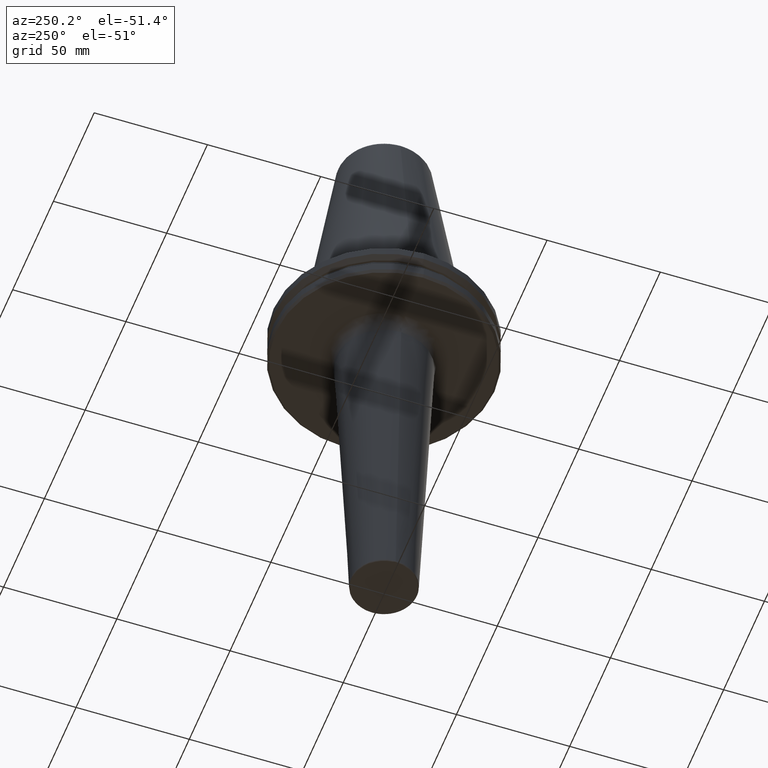
[diagram: clean part render]
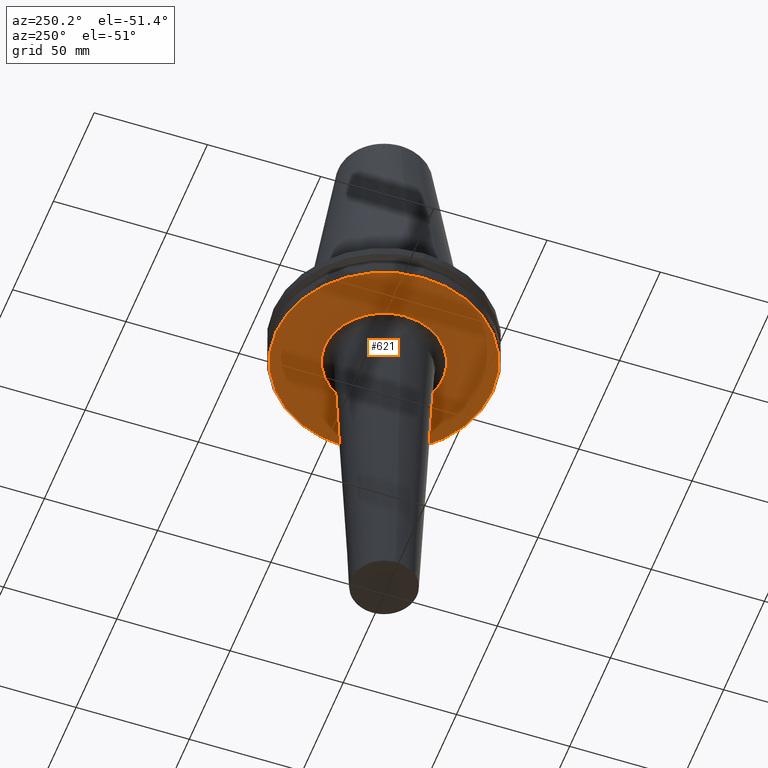
[diagram: same view with one face highlighted and labeled with its STEP entity id]
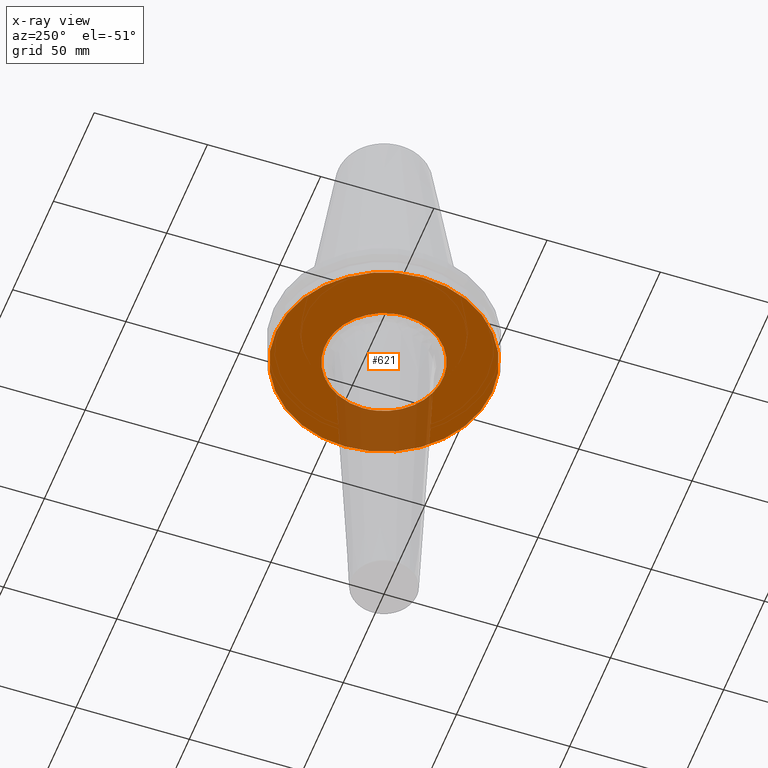
[diagram: x-ray of the same camera — body ghosted, the highlighted face saturated]
A machine part, auxiliary view. The second image highlights one B-rep face of the part: STEP entity #621.
The next image is the same camera in x-ray: the body ghosted, the highlighted face saturated — about 18% of this face is hidden behind the body in this view.
In plain terms, the highlighted planar face has unit normal (0, 0, -1).
Its self-contained STEP definition (entity closure, byte-faithful):
#28 = CARTESIAN_POINT ( 'NONE',  ( 1.591773308855094700, 26.03002750902816900, -19.10000000000000900 ) ) ;
#41 = CARTESIAN_POINT ( 'NONE',  ( -0.7958866544275430300, 26.03007615503745600, -19.10000000000001200 ) ) ;
#157 = VERTEX_POINT ( 'NONE', #241 ) ;
#159 = CARTESIAN_POINT ( 'NONE',  ( -26.03005993970102200, 0.0000000000000000000, -19.10000000000000500 ) ) ;
#174 = CARTESIAN_POINT ( 'NONE',  ( 13.50780819922311700, 22.26830765112801200, -19.10000000000000900 ) ) ;
#205 = CARTESIAN_POINT ( 'NONE',  ( 14.28990858526559500, 21.75696430597932400, -19.09999999999999800 ) ) ;
#232 = EDGE_LOOP ( 'NONE', ( #1393, #1376 ) ) ;
#241 = CARTESIAN_POINT ( 'NONE',  ( 47.74999999999995700, 0.0000000000000000000, -19.09999999999995200 ) ) ;
#257 = DIRECTION ( 'NONE',  ( -1.000000000000000000, 0.0000000000000000000, 0.0000000000000000000 ) ) ;
#263 = DIRECTION ( 'NONE',  ( -0.0000000000000000000, -0.0000000000000000000, -1.000000000000000000 ) ) ;
#271 = CARTESIAN_POINT ( 'NONE',  ( 0.0000000000000000000, 0.0000000000000000000, -19.09999999999995200 ) ) ;
#272 = CARTESIAN_POINT ( 'NONE',  ( 4.050720657154872000, -25.71433571196434200, -19.10000000000000500 ) ) ;
#276 = CARTESIAN_POINT ( 'NONE',  ( -47.74999999999995700, 5.908920805886001700E-015, -19.09999999999995200 ) ) ;
#315 = CARTESIAN_POINT ( 'NONE',  ( 26.03005993970102200, 3.187762958676860000E-015, -19.10000000000000500 ) ) ;
#317 = CARTESIAN_POINT ( 'NONE',  ( 26.03005993970102900, -1.592304120442103300, -19.10000000000000900 ) ) ;
#320 = EDGE_LOOP ( 'NONE', ( #1296, #647 ) ) ;
#322 = CARTESIAN_POINT ( 'NONE',  ( 25.88520585277175800, -3.171140507475178200, -19.10000000000000500 ) ) ;
#327 = CARTESIAN_POINT ( 'NONE',  ( 25.59097098869668200, -4.760968046311962400, -19.10000000000000500 ) ) ;
#338 = CARTESIAN_POINT ( 'NONE',  ( 25.58585564429415300, -4.788389321002451700, -19.10000000000000100 ) ) ;
#347 = CARTESIAN_POINT ( 'NONE',  ( 25.57609859561316800, -4.840236144990848600, -19.10000000000000500 ) ) ;
#355 = CARTESIAN_POINT ( 'NONE',  ( 25.56134800852979100, -4.917973045058469800, -19.10000000000000100 ) ) ;
#357 = CARTESIAN_POINT ( 'NONE',  ( 25.52612487356853400, -5.099125793811452900, -19.10000000000000100 ) ) ;
#360 = AXIS2_PLACEMENT_3D ( 'NONE', #271, #263, #257 ) ;
#364 = CARTESIAN_POINT ( 'NONE',  ( 25.45245820991262800, -5.460497885698266000, -19.10000000000000500 ) ) ;
#371 = CARTESIAN_POINT ( 'NONE',  ( 25.29224330766710300, -6.179508446995198400, -19.10000000000000100 ) ) ;
#372 = CARTESIAN_POINT ( 'NONE',  ( 24.92028720344123000, -7.602595079682323000, -19.10000000000000100 ) ) ;
#375 = CARTESIAN_POINT ( 'NONE',  ( 24.51313688598796900, -8.796781639288305100, -19.10000000000000500 ) ) ;
#379 = CARTESIAN_POINT ( 'NONE',  ( 24.18302697800657300, -9.630573960513265400, -19.09999999999999800 ) ) ;
#381 = CARTESIAN_POINT ( 'NONE',  ( 24.16180779767351100, -9.683701166111715600, -19.10000000000000100 ) ) ;
#387 = CARTESIAN_POINT ( 'NONE',  ( 24.12070927020587900, -9.785634931535309300, -19.10000000000000500 ) ) ;
#391 = CARTESIAN_POINT ( 'NONE',  ( 24.05860036175114300, -9.938295532364961100, -19.10000000000000500 ) ) ;
#394 = CARTESIAN_POINT ( 'NONE',  ( 23.91045175458374000, -10.29282326982728300, -19.10000000000000900 ) ) ;
#398 = CARTESIAN_POINT ( 'NONE',  ( 23.60124325715674900, -10.99515742019122100, -19.10000000000000500 ) ) ;
#401 = CARTESIAN_POINT ( 'NONE',  ( 22.93118112993417800, -12.37294042267620900, -19.10000000000000900 ) ) ;
#407 = CARTESIAN_POINT ( 'NONE',  ( 22.26830765111149500, -13.50780819924694500, -19.10000000000001200 ) ) ;
#408 = CARTESIAN_POINT ( 'NONE',  ( 21.75696430598036100, -14.28990858526409900, -19.10000000000000500 ) ) ;
#411 = CARTESIAN_POINT ( 'NONE',  ( 21.72543059198216400, -14.33781095273481100, -19.10000000000000500 ) ) ;
#417 = CARTESIAN_POINT ( 'NONE',  ( 21.66339761940653500, -14.43137649921018100, -19.10000000000000500 ) ) ;
#419 = CARTESIAN_POINT ( 'NONE',  ( 21.56992792226745000, -14.57138209286805800, -19.10000000000000900 ) ) ;
#422 = CARTESIAN_POINT ( 'NONE',  ( -19.67642447712934500, -17.13558675727097100, -19.10000000000000900 ) ) ;
#428 = CARTESIAN_POINT ( 'NONE',  ( -21.81776551661294400, -14.19690884579600800, -19.10000000000000900 ) ) ;
#432 = CARTESIAN_POINT ( 'NONE',  ( 21.34889029434690100, -14.89566272901688600, -19.10000000000001200 ) ) ;
#433 = CARTESIAN_POINT ( 'NONE',  ( -25.45245820991720400, 5.460497885673593300, -19.10000000000000500 ) ) ;
#435 = CARTESIAN_POINT ( 'NONE',  ( 20.89504836678839400, -15.53462767176966600, -19.10000000000000500 ) ) ;
#437 = CARTESIAN_POINT ( 'NONE',  ( -20.80393323569842300, -15.74770538126881500, -19.10000000000001200 ) ) ;
#439 = CARTESIAN_POINT ( 'NONE',  ( 19.94029782480183100, -16.77417223909576500, -19.10000000000000500 ) ) ;
#442 = CARTESIAN_POINT ( 'NONE',  ( 19.04125446846547100, -17.77083560849614900, -19.10000000000000100 ) ) ;
#446 = CARTESIAN_POINT ( 'NONE',  ( 17.13558675723370300, -19.67642447717238200, -19.10000000000000500 ) ) ;
#448 = CARTESIAN_POINT ( 'NONE',  ( 15.74770538130955800, -20.80393323566347500, -19.10000000000000500 ) ) ;
#450 = EDGE_CURVE ( 'NONE', #917, #157, #1521, .T. ) ;
#453 = CARTESIAN_POINT ( 'NONE',  ( 14.19690884579472200, -21.81776551661403100, -19.10000000000000100 ) ) ;
#455 = CARTESIAN_POINT ( 'NONE',  ( 14.15177242031490600, -21.84706749499573400, -19.10000000000000500 ) ) ;
#461 = CARTESIAN_POINT ( 'NONE',  ( 14.05940394331033600, -21.90662960198640300, -19.10000000000000500 ) ) ;
#467 = CARTESIAN_POINT ( 'NONE',  ( 13.92061301068826900, -21.99551070074955200, -19.10000000000000900 ) ) ;
#469 = CARTESIAN_POINT ( 'NONE',  ( 13.59509998143030000, -22.19966549913685600, -19.10000000000000500 ) ) ;
#475 = CARTESIAN_POINT ( 'NONE',  ( 12.93740384368846100, -22.59503736767138100, -19.10000000000000900 ) ) ;
#478 = CARTESIAN_POINT ( 'NONE',  ( 11.59533125130115400, -23.33403019177998400, -19.10000000000000500 ) ) ;
#494 = CARTESIAN_POINT ( 'NONE',  ( 10.39924562884869500, -23.87873676165518700, -19.10000000000000500 ) ) ;
#499 = CARTESIAN_POINT ( 'NONE',  ( 9.530419961165739200, -24.22267698577738700, -19.10000000000000100 ) ) ;
#501 = CARTESIAN_POINT ( 'NONE',  ( 9.483348310640556300, -24.24114026569149900, -19.10000000000000100 ) ) ;
#506 = CARTESIAN_POINT ( 'NONE',  ( 9.385037894743293300, -24.27937469819399800, -19.10000000000000500 ) ) ;
#515 = CARTESIAN_POINT ( 'NONE',  ( 9.237440897741962000, -24.33626572164661900, -19.10000000000000500 ) ) ;
#516 = CARTESIAN_POINT ( 'NONE',  ( 8.892128292650845400, -24.46578706592808000, -19.10000000000000900 ) ) ;
#520 = CARTESIAN_POINT ( 'NONE',  ( 8.197824634116507500, -24.71193224605905000, -19.10000000000000500 ) ) ;
#522 = CARTESIAN_POINT ( 'NONE',  ( 6.794503523639468400, -25.15263257259326900, -19.10000000000000500 ) ) ;
#527 = CARTESIAN_POINT ( 'NONE',  ( 5.566433211673356100, -25.44193565180363200, -19.10000000000000500 ) ) ;
#530 = CARTESIAN_POINT ( 'NONE',  ( 4.710574034518638000, -25.60029649226039400, -19.10000000000000500 ) ) ;
#534 = B_SPLINE_CURVE_WITH_KNOTS ( 'NONE', 3,
 ( #946, #976, #864, #1039, #1123, #1131, #851, #849, #837, #831, #826, #825, #807, #805, #804, #800, #792, #786, #781, #771, #764, #752, #745, #744, #736, #428, #437, #422, #721, #703, #696, #693, #690, #679, #678, #671, #666, #662, #657, #651, #637, #632, #626, #623, #620, #600, #595, #588, #583, #578, #576, #573, #571, #564, #563, #561, #559, #553, #272, #619, #684, #544, #536, #530, #527, #522, #520, #516, #515, #506, #501, #499, #494, #478, #475, #469, #467, #461, #455, #453, #448, #446, #442, #439, #435, #432, #419, #417, #411, #408, #407, #401, #398, #394, #391, #387, #381, #379, #375, #372, #371, #364, #357, #355, #347, #338, #327, #322, #317, #315 ),
 .UNSPECIFIED., .F., .F.,
 ( 4, 1, 1, 1, 1, 1, 2, 2, 1, 1, 1, 1, 2, 2, 1, 1, 1, 1, 2, 2, 2, 1, 1, 1, 1, 2, 2, 1, 1, 1, 1, 2, 2, 1, 1, 1, 1, 1, 2, 2, 2, 1, 1, 1, 1, 1, 2, 2, 1, 1, 1, 1, 2, 2, 1, 1, 1, 1, 2, 2, 2, 1, 1, 1, 1, 2, 2, 1, 1, 1, 1, 2, 2, 1, 1, 1, 1, 1, 2, 2, 4 ),
 ( 0.0000000000000000000, 0.03125000000000097100, 0.04687500000000147100, 0.05468750000000171400, 0.05859375000000181800, 0.06054687500000190100, 0.06152343750000195700, 0.06250000000000201200, 0.09375000000000265100, 0.1093750000000029600, 0.1171875000000031400, 0.1210937500000032100, 0.1230468750000032200, 0.1250000000000032200, 0.1562500000000030000, 0.1718750000000028900, 0.1796875000000028900, 0.1835937500000029400, 0.1855468750000029400, 0.1875000000000029400, 0.2500000000000045500, 0.2812500000000053800, 0.2968750000000057700, 0.3046875000000060000, 0.3085937500000060500, 0.3105468750000060500, 0.3125000000000060500, 0.3437500000000067700, 0.3593750000000071100, 0.3671875000000073300, 0.3710937500000073800, 0.3730468750000073800, 0.3750000000000073800, 0.4062500000000071600, 0.4218750000000071100, 0.4296875000000071100, 0.4335937500000070500, 0.4355468750000069900, 0.4365234375000069400, 0.4375000000000069400, 0.5000000000000055500, 0.5312500000000050000, 0.5468750000000046600, 0.5546875000000044400, 0.5585937500000043300, 0.5605468750000043300, 0.5615234375000042200, 0.5625000000000041100, 0.5937500000000028900, 0.6093750000000023300, 0.6171875000000020000, 0.6210937500000018900, 0.6230468750000017800, 0.6250000000000017800, 0.6562500000000012200, 0.6718750000000010000, 0.6796875000000008900, 0.6835937500000008900, 0.6855468750000010000, 0.6875000000000010000, 0.7499999999999993300, 0.7812499999999985600, 0.7968749999999982200, 0.8046874999999981100, 0.8085937499999980000, 0.8105468749999980000, 0.8124999999999978900, 0.8437499999999984500, 0.8593749999999987800, 0.8671874999999988900, 0.8710937499999990000, 0.8730468749999990000, 0.8749999999999991100, 0.9062500000000000000, 0.9218750000000004400, 0.9296875000000006700, 0.9335937500000007800, 0.9355468750000008900, 0.9365234375000008900, 0.9375000000000008900, 1.000000000000000000 ),
 .UNSPECIFIED. ) ;
#536 = CARTESIAN_POINT ( 'NONE',  ( 4.687571644382878800, -25.60451670011987300, -19.10000000000000900 ) ) ;
#544 = CARTESIAN_POINT ( 'NONE',  ( 4.638624652382139500, -25.61342960327163400, -19.10000000000000500 ) ) ;
#553 = CARTESIAN_POINT ( 'NONE',  ( 3.363517177387018700, -25.81732678215271900, -19.10000000000000500 ) ) ;
#559 = CARTESIAN_POINT ( 'NONE',  ( 1.984865290380411400, -25.97576803394128900, -19.10000000000000500 ) ) ;
#561 = CARTESIAN_POINT ( 'NONE',  ( 0.7958866544245858400, -26.03007615503744200, -19.10000000000000100 ) ) ;
#563 = CARTESIAN_POINT ( 'NONE',  ( -1.591773308849160600, -26.03002750902817300, -19.10000000000000500 ) ) ;
#564 = CARTESIAN_POINT ( 'NONE',  ( -3.171315816543454500, -25.88517340771245400, -19.10000000000000500 ) ) ;
#567 = DIRECTION ( 'NONE',  ( -1.000000000000000000, 0.0000000000000000000, -0.0000000000000000000 ) ) ;
#570 = DIRECTION ( 'NONE',  ( 0.0000000000000000000, 0.0000000000000000000, -1.000000000000000000 ) ) ;
#571 = CARTESIAN_POINT ( 'NONE',  ( -4.760965307107767300, -25.59097149565073400, -19.10000000000000100 ) ) ;
#573 = CARTESIAN_POINT ( 'NONE',  ( -4.788389321000647800, -25.58585564429466800, -19.10000000000000900 ) ) ;
#576 = CARTESIAN_POINT ( 'NONE',  ( -4.840236144987281700, -25.57609859561419100, -19.10000000000000500 ) ) ;
#578 = CARTESIAN_POINT ( 'NONE',  ( -4.917973045052304900, -25.56134800853155700, -19.10000000000000500 ) ) ;
#583 = CARTESIAN_POINT ( 'NONE',  ( -5.099125793799525600, -25.52612487357196300, -19.10000000000000900 ) ) ;
#588 = CARTESIAN_POINT ( 'NONE',  ( -5.460497885675997600, -25.45245820991901900, -19.10000000000000500 ) ) ;
#595 = CARTESIAN_POINT ( 'NONE',  ( -6.179508446957023600, -25.29224330767805600, -19.10000000000000100 ) ) ;
#600 = CARTESIAN_POINT ( 'NONE',  ( -7.602595079631417900, -24.92028720345583900, -19.10000000000000100 ) ) ;
#602 = EDGE_CURVE ( 'NONE', #1409, #1193, #921, .T. ) ;
#605 = CARTESIAN_POINT ( 'NONE',  ( 0.0000000000000000000, 1.392610934382537900E-015, -19.10000000000000500 ) ) ;
#619 = CARTESIAN_POINT ( 'NONE',  ( 4.393791781104935600, -25.65689756579663700, -19.10000000000000900 ) ) ;
#620 = CARTESIAN_POINT ( 'NONE',  ( -8.796781639259215500, -24.51313688599631700, -19.10000000000000100 ) ) ;
#621 = ADVANCED_FACE ( 'NONE', ( #1301, #1311 ), #624, .T. ) ;
#623 = CARTESIAN_POINT ( 'NONE',  ( -9.630573960515088000, -24.18302697800606500, -19.10000000000000100 ) ) ;
#624 = PLANE ( 'NONE',  #1407 ) ;
#626 = CARTESIAN_POINT ( 'NONE',  ( -9.683701166112275200, -24.16180779767368500, -19.10000000000000500 ) ) ;
#632 = CARTESIAN_POINT ( 'NONE',  ( -9.785634931536394600, -24.12070927020624100, -19.10000000000000500 ) ) ;
#637 = CARTESIAN_POINT ( 'NONE',  ( -9.938295532366806700, -24.05860036175177500, -19.10000000000000900 ) ) ;
#647 = ORIENTED_EDGE ( 'NONE', *, *, #602, .T. ) ;
#651 = CARTESIAN_POINT ( 'NONE',  ( -10.29282326983074800, -23.91045175458489400, -19.10000000000000900 ) ) ;
#657 = CARTESIAN_POINT ( 'NONE',  ( -10.99515742019713600, -23.60124325715873900, -19.10000000000000100 ) ) ;
#662 = CARTESIAN_POINT ( 'NONE',  ( -12.37294042268409200, -22.93118112993683200, -19.10000000000000500 ) ) ;
#666 = CARTESIAN_POINT ( 'NONE',  ( -13.50780819925145200, -22.26830765111301600, -19.10000000000000900 ) ) ;
#671 = CARTESIAN_POINT ( 'NONE',  ( -14.28990858526382500, -21.75696430598026200, -19.10000000000000100 ) ) ;
#678 = CARTESIAN_POINT ( 'NONE',  ( -14.33781095273747000, -21.72543059197987200, -19.10000000000000100 ) ) ;
#679 = CARTESIAN_POINT ( 'NONE',  ( -14.43137649921535500, -21.66339761940204800, -19.10000000000000500 ) ) ;
#684 = CARTESIAN_POINT ( 'NONE',  ( 4.565194689096494500, -25.62669283994439000, -19.10000000000000500 ) ) ;
#690 = CARTESIAN_POINT ( 'NONE',  ( -14.57138209287689400, -21.56992792225980400, -19.10000000000000500 ) ) ;
#693 = CARTESIAN_POINT ( 'NONE',  ( -14.89566272903337400, -21.34889029433263400, -19.10000000000000900 ) ) ;
#696 = CARTESIAN_POINT ( 'NONE',  ( -15.53462767179791200, -20.89504836676394800, -19.10000000000000100 ) ) ;
#701 = CARTESIAN_POINT ( 'NONE',  ( 12.37294042263451600, 22.93118112996306800, -19.10000000000000500 ) ) ;
#703 = CARTESIAN_POINT ( 'NONE',  ( -16.77417223913341700, -19.94029782476922500, -19.10000000000000100 ) ) ;
#719 = CARTESIAN_POINT ( 'NONE',  ( -26.03005993970102200, 0.0000000000000000000, -19.10000000000000500 ) ) ;
#720 = CARTESIAN_POINT ( 'NONE',  ( -26.03005993970102200, 1.592304120442116900, -19.09999999999999800 ) ) ;
#721 = CARTESIAN_POINT ( 'NONE',  ( -17.77083560851766500, -19.04125446844684800, -19.10000000000000900 ) ) ;
#722 = CARTESIAN_POINT ( 'NONE',  ( -25.88520585277175500, 3.171140507475128000, -19.10000000000000100 ) ) ;
#726 = CARTESIAN_POINT ( 'NONE',  ( -25.59097098869668600, 4.760968046311966800, -19.10000000000000500 ) ) ;
#732 = CARTESIAN_POINT ( 'NONE',  ( -25.58585564429452900, 4.788389321000458700, -19.10000000000001200 ) ) ;
#736 = CARTESIAN_POINT ( 'NONE',  ( -21.84706749499651200, -14.15177242031293600, -19.10000000000000500 ) ) ;
#740 = CARTESIAN_POINT ( 'NONE',  ( -25.57609859561390000, 4.840236144986901600, -19.10000000000000100 ) ) ;
#744 = CARTESIAN_POINT ( 'NONE',  ( -21.90662960198793700, -14.05940394330649200, -19.10000000000000500 ) ) ;
#745 = CARTESIAN_POINT ( 'NONE',  ( -21.99551070075217400, -13.92061301068170400, -19.10000000000000500 ) ) ;
#747 = CARTESIAN_POINT ( 'NONE',  ( -25.56134800853105600, 4.917973045051647700, -19.10000000000000100 ) ) ;
#751 = CARTESIAN_POINT ( 'NONE',  ( -24.92028720345167200, 7.602595079625909400, -19.10000000000000500 ) ) ;
#752 = CARTESIAN_POINT ( 'NONE',  ( -22.19966549914175100, -13.59509998141803600, -19.10000000000000100 ) ) ;
#755 = CARTESIAN_POINT ( 'NONE',  ( -24.51313688599393700, 8.796781639256067800, -19.10000000000000500 ) ) ;
#764 = CARTESIAN_POINT ( 'NONE',  ( -22.59503736767978300, -12.93740384366743400, -19.10000000000000500 ) ) ;
#766 = CARTESIAN_POINT ( 'NONE',  ( -24.18302697800620700, 9.630573960515297600, -19.10000000000000500 ) ) ;
#769 = CARTESIAN_POINT ( 'NONE',  ( -24.16180779767552900, 9.683701166108800600, -19.10000000000000500 ) ) ;
#771 = CARTESIAN_POINT ( 'NONE',  ( -23.33403019179120000, -11.59533125127312300, -19.10000000000000900 ) ) ;
#774 = CARTESIAN_POINT ( 'NONE',  ( -24.12070927020983600, 9.785634931529594700, -19.10000000000000100 ) ) ;
#778 = CARTESIAN_POINT ( 'NONE',  ( -24.05860036175792200, 9.938295532355196500, -19.10000000000000500 ) ) ;
#781 = CARTESIAN_POINT ( 'NONE',  ( -23.87873676166158900, -10.39924562883266800, -19.09999999999999800 ) ) ;
#784 = CARTESIAN_POINT ( 'NONE',  ( -23.91045175459636600, 10.29282326980905900, -19.10000000000000500 ) ) ;
#786 = CARTESIAN_POINT ( 'NONE',  ( -24.22267698577700300, -9.530419961166742800, -19.10000000000000500 ) ) ;
#787 = CARTESIAN_POINT ( 'NONE',  ( -23.60124325717842500, 10.99515742015994700, -19.10000000000000500 ) ) ;
#789 = CARTESIAN_POINT ( 'NONE',  ( -22.93118112996308300, 12.37294042263448500, -19.10000000000000500 ) ) ;
#792 = CARTESIAN_POINT ( 'NONE',  ( -24.24114026569177900, -9.483348310639801300, -19.10000000000000100 ) ) ;
#793 = CARTESIAN_POINT ( 'NONE',  ( -22.26830765112802300, 13.50780819922309700, -19.10000000000000900 ) ) ;
#796 = CARTESIAN_POINT ( 'NONE',  ( -21.75696430597933100, 14.28990858526559800, -19.10000000000000500 ) ) ;
#800 = CARTESIAN_POINT ( 'NONE',  ( -24.27937469819456600, -9.385037894741822500, -19.10000000000000100 ) ) ;
#802 = CARTESIAN_POINT ( 'NONE',  ( -21.72543059198183000, 14.33781095273515600, -19.10000000000000500 ) ) ;
#804 = CARTESIAN_POINT ( 'NONE',  ( -24.33626572164758500, -9.237440897739453800, -19.10000000000000100 ) ) ;
#805 = CARTESIAN_POINT ( 'NONE',  ( -24.46578706592988400, -8.892128292646157600, -19.10000000000000500 ) ) ;
#806 = CARTESIAN_POINT ( 'NONE',  ( -21.66339761940585600, 14.43137649921084700, -19.10000000000000100 ) ) ;
#807 = CARTESIAN_POINT ( 'NONE',  ( -24.71193224606215500, -8.197824634108474800, -19.10000000000000500 ) ) ;
#808 = CARTESIAN_POINT ( 'NONE',  ( -21.56992792226631300, 14.57138209286919100, -19.10000000000000100 ) ) ;
#811 = CARTESIAN_POINT ( 'NONE',  ( -21.34889029434478400, 14.89566272901900300, -19.10000000000000500 ) ) ;
#815 = CARTESIAN_POINT ( 'NONE',  ( -20.89504836678477400, 15.53462767177329300, -19.10000000000000500 ) ) ;
#817 = CARTESIAN_POINT ( 'NONE',  ( -19.94029782479699600, 16.77417223910058700, -19.10000000000000500 ) ) ;
#822 = CARTESIAN_POINT ( 'NONE',  ( -19.04125446846271400, 17.77083560849891700, -19.10000000000000900 ) ) ;
#824 = CARTESIAN_POINT ( 'NONE',  ( -17.13558675723922800, 19.67642447716686100, -19.10000000000000900 ) ) ;
#825 = CARTESIAN_POINT ( 'NONE',  ( -25.15263257259741200, -6.794503523628755200, -19.10000000000000500 ) ) ;
#826 = CARTESIAN_POINT ( 'NONE',  ( -25.44193565180600600, -5.566433211667233000, -19.10000000000000500 ) ) ;
#828 = CARTESIAN_POINT ( 'NONE',  ( -15.74770538130955400, 20.80393323566348200, -19.10000000000001200 ) ) ;
#831 = CARTESIAN_POINT ( 'NONE',  ( -25.60029649226032300, -4.710574034518827200, -19.09999999999999800 ) ) ;
#832 = CARTESIAN_POINT ( 'NONE',  ( -14.19690884579472200, 21.81776551661402100, -19.10000000000000100 ) ) ;
#835 = CARTESIAN_POINT ( 'NONE',  ( -14.15177242031957600, 21.84706749499267900, -19.10000000000000100 ) ) ;
#837 = CARTESIAN_POINT ( 'NONE',  ( -25.60451569457898200, -4.687577078815579900, -19.10000000000000100 ) ) ;
#844 = CARTESIAN_POINT ( 'NONE',  ( -14.05940394331945200, 21.90662960198044800, -19.10000000000000500 ) ) ;
#849 = CARTESIAN_POINT ( 'NONE',  ( -25.61342761594279300, -4.638635392875118100, -19.10000000000000500 ) ) ;
#851 = CARTESIAN_POINT ( 'NONE',  ( -25.62668940368656200, -4.565213260307465300, -19.10000000000000500 ) ) ;
#853 = CARTESIAN_POINT ( 'NONE',  ( -13.92061301070384400, 21.99551070073936600, -19.10000000000000100 ) ) ;
#856 = CARTESIAN_POINT ( 'NONE',  ( -13.59509998145937500, 22.19966549911785900, -19.10000000000000900 ) ) ;
#860 = CARTESIAN_POINT ( 'NONE',  ( -12.93740384373830200, 22.59503736763879200, -19.10000000000000500 ) ) ;
#864 = CARTESIAN_POINT ( 'NONE',  ( -25.97573965710254700, -1.985018652638710400, -19.10000000000000900 ) ) ;
#866 = AXIS2_PLACEMENT_3D ( 'NONE', #1405, #1401, #1396 ) ;
#869 = CARTESIAN_POINT ( 'NONE',  ( -11.59533125136761500, 23.33403019173654200, -19.10000000000000900 ) ) ;
#876 = CARTESIAN_POINT ( 'NONE',  ( -10.39924562888667100, 23.87873676163036400, -19.10000000000000900 ) ) ;
#880 = CARTESIAN_POINT ( 'NONE',  ( -9.530419961163371300, 24.22267698577892500, -19.10000000000000100 ) ) ;
#882 = CARTESIAN_POINT ( 'NONE',  ( -9.483348310646381000, 24.24114026569033300, -19.10000000000000100 ) ) ;
#886 = CARTESIAN_POINT ( 'NONE',  ( -9.385037894754665500, 24.27937469819175200, -19.10000000000000900 ) ) ;
#888 = CARTESIAN_POINT ( 'NONE',  ( -9.237440897761372200, 24.33626572164278200, -19.10000000000000100 ) ) ;
#891 = CARTESIAN_POINT ( 'NONE',  ( -8.892128292687070600, 24.46578706592092100, -19.10000000000000900 ) ) ;
#896 = CARTESIAN_POINT ( 'NONE',  ( -8.197824634178610700, 24.71193224604678900, -19.10000000000000500 ) ) ;
#904 = CARTESIAN_POINT ( 'NONE',  ( -6.794503523722259100, 25.15263257257694100, -19.10000000000000500 ) ) ;
#907 = EDGE_CURVE ( 'NONE', #157, #917, #1140, .T. ) ;
#909 = CARTESIAN_POINT ( 'NONE',  ( -5.566433211720661400, 25.44193565179431000, -19.10000000000000500 ) ) ;
#914 = CARTESIAN_POINT ( 'NONE',  ( -4.710574034517160100, 25.60029649226069600, -19.10000000000000500 ) ) ;
#917 = VERTEX_POINT ( 'NONE', #276 ) ;
#918 = CARTESIAN_POINT ( 'NONE',  ( -4.687571644383064400, 25.60451670011988100, -19.10000000000001200 ) ) ;
#921 = B_SPLINE_CURVE_WITH_KNOTS ( 'NONE', 3,
 ( #1143, #1138, #1141, #1132, #1125, #1122, #1113, #1106, #1105, #1103, #1098, #1094, #1089, #1087, #1085, #1084, #1081, #1075, #1070, #1067, #1066, #1062, #1060, #1055, #1053, #1052, #1050, #1047, #1040, #1034, #1033, #1029, #1027, #1016, #1013, #205, #174, #701, #1003, #997, #989, #985, #980, #978, #972, #968, #967, #962, #959, #951, #949, #947, #943, #1078, #28, #41, #940, #934, #930, #928, #925, #924, #918, #914, #909, #904, #896, #891, #888, #886, #882, #880, #876, #869, #860, #856, #853, #844, #835, #832, #828, #824, #822, #817, #815, #811, #808, #806, #802, #796, #793, #789, #787, #784, #778, #774, #769, #766, #755, #751, #1198, #433, #1307, #747, #740, #732, #726, #722, #720, #719 ),
 .UNSPECIFIED., .F., .F.,
 ( 4, 1, 1, 1, 1, 1, 2, 2, 1, 1, 1, 1, 2, 2, 1, 1, 1, 1, 2, 2, 2, 1, 1, 1, 1, 2, 2, 1, 1, 1, 1, 2, 2, 1, 1, 1, 1, 1, 2, 2, 2, 1, 1, 1, 1, 1, 2, 2, 1, 1, 1, 1, 2, 2, 1, 1, 1, 1, 2, 2, 2, 1, 1, 1, 1, 2, 2, 1, 1, 1, 1, 2, 2, 1, 1, 1, 1, 1, 2, 2, 4 ),
 ( 0.0000000000000000000, 0.03124999999999910500, 0.04687499999999865400, 0.05468749999999842500, 0.05859374999999829300, 0.06054687499999823100, 0.06152343749999818900, 0.06249999999999814700, 0.09374999999999693300, 0.1093749999999962800, 0.1171874999999959900, 0.1210937499999958400, 0.1230468749999957800, 0.1249999999999957300, 0.1562499999999948700, 0.1718749999999943900, 0.1796874999999941200, 0.1835937499999939200, 0.1855468749999938100, 0.1874999999999937000, 0.2499999999999915300, 0.2812499999999904000, 0.2968749999999899000, 0.3046874999999896700, 0.3085937499999896200, 0.3105468749999895600, 0.3124999999999895100, 0.3437499999999883400, 0.3593749999999877900, 0.3671874999999875700, 0.3710937499999874500, 0.3730468749999874500, 0.3749999999999874500, 0.4062499999999874000, 0.4218749999999873400, 0.4296874999999873400, 0.4335937499999873400, 0.4355468749999873400, 0.4365234374999874000, 0.4374999999999874000, 0.4999999999999884500, 0.5312499999999890100, 0.5468749999999892300, 0.5546874999999893400, 0.5585937499999894500, 0.5605468749999894500, 0.5615234374999895600, 0.5624999999999896700, 0.5937499999999905600, 0.6093749999999910100, 0.6171874999999912300, 0.6210937499999913400, 0.6230468749999913400, 0.6249999999999914500, 0.6562499999999930100, 0.6718749999999937800, 0.6796874999999941200, 0.6835937499999942300, 0.6855468749999942300, 0.6874999999999943400, 0.7499999999999957800, 0.7812499999999965600, 0.7968749999999970000, 0.8046874999999972200, 0.8085937499999973400, 0.8105468749999974500, 0.8124999999999974500, 0.8437499999999981100, 0.8593749999999984500, 0.8671874999999986700, 0.8710937499999987800, 0.8730468749999988900, 0.8749999999999988900, 0.9062499999999993300, 0.9218749999999995600, 0.9296874999999996700, 0.9335937499999997800, 0.9355468749999998900, 0.9365234374999997800, 0.9374999999999997800, 1.000000000000000000 ),
 .UNSPECIFIED. ) ;
#924 = CARTESIAN_POINT ( 'NONE',  ( -4.638624652382502800, 25.61342960327164100, -19.10000000000000900 ) ) ;
#925 = CARTESIAN_POINT ( 'NONE',  ( -4.565194689097129600, 25.62669283994439000, -19.10000000000000900 ) ) ;
#928 = CARTESIAN_POINT ( 'NONE',  ( -4.393791781106148900, 25.65689756579663300, -19.10000000000000500 ) ) ;
#930 = CARTESIAN_POINT ( 'NONE',  ( -4.050720657157140400, 25.71433571196434500, -19.10000000000000900 ) ) ;
#934 = CARTESIAN_POINT ( 'NONE',  ( -3.363517177390904500, 25.81732678215273300, -19.10000000000000500 ) ) ;
#940 = CARTESIAN_POINT ( 'NONE',  ( -1.984865290385571200, 25.97576803394129600, -19.10000000000000900 ) ) ;
#943 = CARTESIAN_POINT ( 'NONE',  ( 4.760965307107304600, 25.59097149565073800, -19.10000000000000500 ) ) ;
#946 = CARTESIAN_POINT ( 'NONE',  ( -26.03005993970102200, 0.0000000000000000000, -19.10000000000000500 ) ) ;
#947 = CARTESIAN_POINT ( 'NONE',  ( 4.788389321000463100, 25.58585564429452600, -19.10000000000000500 ) ) ;
#949 = CARTESIAN_POINT ( 'NONE',  ( 4.840236144986906900, 25.57609859561390000, -19.10000000000000100 ) ) ;
#951 = CARTESIAN_POINT ( 'NONE',  ( 4.917973045051645900, 25.56134800853106300, -19.10000000000000900 ) ) ;
#959 = CARTESIAN_POINT ( 'NONE',  ( 5.099125793798246600, 25.52612487357098900, -19.10000000000000500 ) ) ;
#962 = CARTESIAN_POINT ( 'NONE',  ( 5.460497885673595100, 25.45245820991720000, -19.10000000000000500 ) ) ;
#967 = CARTESIAN_POINT ( 'NONE',  ( 6.179508446952903400, 25.29224330767493400, -19.10000000000000500 ) ) ;
#968 = CARTESIAN_POINT ( 'NONE',  ( 7.602595079625929800, 24.92028720345167200, -19.10000000000000500 ) ) ;
#972 = CARTESIAN_POINT ( 'NONE',  ( 8.796781639256071400, 24.51313688599393000, -19.10000000000000900 ) ) ;
#976 = CARTESIAN_POINT ( 'NONE',  ( -26.03005993970103700, -0.7959742900007568100, -19.10000000000000900 ) ) ;
#978 = CARTESIAN_POINT ( 'NONE',  ( 9.630573960515295800, 24.18302697800620400, -19.10000000000000100 ) ) ;
#980 = CARTESIAN_POINT ( 'NONE',  ( 9.683701166108804200, 24.16180779767553200, -19.10000000000000500 ) ) ;
#985 = CARTESIAN_POINT ( 'NONE',  ( 9.785634931529600100, 24.12070927020984000, -19.10000000000000500 ) ) ;
#989 = CARTESIAN_POINT ( 'NONE',  ( 9.938295532355201800, 24.05860036175791400, -19.10000000000000500 ) ) ;
#997 = CARTESIAN_POINT ( 'NONE',  ( 10.29282326980905700, 23.91045175459637300, -19.10000000000000500 ) ) ;
#1003 = CARTESIAN_POINT ( 'NONE',  ( 10.99515742015995900, 23.60124325717842500, -19.10000000000000500 ) ) ;
#1013 = CARTESIAN_POINT ( 'NONE',  ( 14.33781095273412900, 21.72543059198250100, -19.10000000000000500 ) ) ;
#1016 = CARTESIAN_POINT ( 'NONE',  ( 14.43137649920883300, 21.66339761940717400, -19.10000000000000100 ) ) ;
#1027 = CARTESIAN_POINT ( 'NONE',  ( 14.57138209286576500, 21.56992792226856900, -19.10000000000000500 ) ) ;
#1029 = CARTESIAN_POINT ( 'NONE',  ( 14.89566272901259900, 21.34889029434897300, -19.10000000000000500 ) ) ;
#1033 = CARTESIAN_POINT ( 'NONE',  ( 15.53462767176232100, 20.89504836679195800, -19.10000000000000500 ) ) ;
#1034 = CARTESIAN_POINT ( 'NONE',  ( 16.77417223908596400, 19.94029782480657100, -19.10000000000000900 ) ) ;
#1039 = CARTESIAN_POINT ( 'NONE',  ( -25.81730549952366600, -3.363632199080754500, -19.10000000000000900 ) ) ;
#1040 = CARTESIAN_POINT ( 'NONE',  ( 17.77083560849054700, 19.04125446846818200, -19.10000000000000500 ) ) ;
#1047 = CARTESIAN_POINT ( 'NONE',  ( 19.67642447718358800, 17.13558675722830000, -19.10000000000000900 ) ) ;
#1050 = CARTESIAN_POINT ( 'NONE',  ( 20.80393323565254000, 15.74770538132628100, -19.10000000000000100 ) ) ;
#1052 = CARTESIAN_POINT ( 'NONE',  ( 21.81776551661437900, 14.19690884579420700, -19.10000000000000900 ) ) ;
#1053 = CARTESIAN_POINT ( 'NONE',  ( 21.84706749499581600, 14.15177242031479600, -19.10000000000001200 ) ) ;
#1055 = CARTESIAN_POINT ( 'NONE',  ( 21.90662960198654800, 14.05940394331011100, -19.10000000000000500 ) ) ;
#1060 = CARTESIAN_POINT ( 'NONE',  ( 21.99551070074980100, 13.92061301068788200, -19.10000000000000100 ) ) ;
#1062 = CARTESIAN_POINT ( 'NONE',  ( 22.19966549913733900, 13.59509998142957500, -19.10000000000000500 ) ) ;
#1066 = CARTESIAN_POINT ( 'NONE',  ( 22.59503736767219100, 12.93740384368721900, -19.10000000000000500 ) ) ;
#1067 = CARTESIAN_POINT ( 'NONE',  ( 23.33403019178106100, 11.59533125129949700, -19.10000000000000100 ) ) ;
#1070 = CARTESIAN_POINT ( 'NONE',  ( 23.87873676165580500, 10.39924562884775300, -19.09999999999999800 ) ) ;
#1075 = CARTESIAN_POINT ( 'NONE',  ( 24.22267698577734800, 9.530419961165803100, -19.10000000000000100 ) ) ;
#1078 = CARTESIAN_POINT ( 'NONE',  ( 3.171315816573704500, 25.88517340771244300, -19.10000000000000500 ) ) ;
#1081 = CARTESIAN_POINT ( 'NONE',  ( 24.24114026569138100, 9.483348310640751700, -19.10000000000000100 ) ) ;
#1084 = CARTESIAN_POINT ( 'NONE',  ( 24.27937469819379500, 9.385037894743685900, -19.10000000000000500 ) ) ;
#1085 = CARTESIAN_POINT ( 'NONE',  ( 24.33626572164626000, 9.237440897742640500, -19.10000000000000900 ) ) ;
#1087 = CARTESIAN_POINT ( 'NONE',  ( 24.46578706592739000, 8.892128292652094100, -19.10000000000000100 ) ) ;
#1089 = CARTESIAN_POINT ( 'NONE',  ( 24.71193224605789900, 8.197824634118660500, -19.10000000000000500 ) ) ;
#1094 = CARTESIAN_POINT ( 'NONE',  ( 25.15263257259172700, 6.794503523642325700, -19.10000000000000500 ) ) ;
#1098 = CARTESIAN_POINT ( 'NONE',  ( 25.44193565180275800, 5.566433211674991300, -19.10000000000000900 ) ) ;
#1103 = CARTESIAN_POINT ( 'NONE',  ( 25.60029649226043000, 4.710574034518595400, -19.10000000000000500 ) ) ;
#1105 = CARTESIAN_POINT ( 'NONE',  ( 25.60451569457900000, 4.687577078816162600, -19.10000000000000900 ) ) ;
#1106 = CARTESIAN_POINT ( 'NONE',  ( 25.61342761594280400, 4.638635392876258500, -19.10000000000000500 ) ) ;
#1113 = CARTESIAN_POINT ( 'NONE',  ( 25.62668940368656200, 4.565213260309430000, -19.10000000000000100 ) ) ;
#1117 = EDGE_CURVE ( 'NONE', #1193, #1409, #534, .T. ) ;
#1122 = CARTESIAN_POINT ( 'NONE',  ( 25.65689091497504700, 4.393827725388024200, -19.10000000000000900 ) ) ;
#1123 = CARTESIAN_POINT ( 'NONE',  ( -25.71432329709740100, -4.050787753142881100, -19.10000000000000500 ) ) ;
#1125 = CARTESIAN_POINT ( 'NONE',  ( 25.71432329709740100, 4.050787753149965200, -19.10000000000000100 ) ) ;
#1131 = CARTESIAN_POINT ( 'NONE',  ( -25.65689091497504700, -4.393827725384224600, -19.10000000000000500 ) ) ;
#1132 = CARTESIAN_POINT ( 'NONE',  ( 25.81730549952367300, 3.363632199092889700, -19.10000000000000500 ) ) ;
#1138 = CARTESIAN_POINT ( 'NONE',  ( 26.03005993970101900, 0.7959742900100031900, -19.09999999999999800 ) ) ;
#1140 = CIRCLE ( 'NONE', #360, 47.74999999999995700 ) ;
#1141 = CARTESIAN_POINT ( 'NONE',  ( 25.97573965710254400, 1.985018652654888300, -19.10000000000000100 ) ) ;
#1143 = CARTESIAN_POINT ( 'NONE',  ( 26.03005993970102200, 3.187762958676860000E-015, -19.10000000000000500 ) ) ;
#1144 = CARTESIAN_POINT ( 'NONE',  ( 26.03005993970102200, 3.187762958676860000E-015, -19.10000000000000500 ) ) ;
#1193 = VERTEX_POINT ( 'NONE', #159 ) ;
#1198 = CARTESIAN_POINT ( 'NONE',  ( -25.29224330767494100, 6.179508446952900700, -19.10000000000000900 ) ) ;
#1296 = ORIENTED_EDGE ( 'NONE', *, *, #1117, .T. ) ;
#1301 = FACE_BOUND ( 'NONE', #320, .T. ) ;
#1307 = CARTESIAN_POINT ( 'NONE',  ( -25.52612487357099300, 5.099125793798242200, -19.10000000000000500 ) ) ;
#1311 = FACE_OUTER_BOUND ( 'NONE', #232, .T. ) ;
#1376 = ORIENTED_EDGE ( 'NONE', *, *, #450, .T. ) ;
#1393 = ORIENTED_EDGE ( 'NONE', *, *, #907, .T. ) ;
#1396 = DIRECTION ( 'NONE',  ( -1.000000000000000000, 0.0000000000000000000, 0.0000000000000000000 ) ) ;
#1401 = DIRECTION ( 'NONE',  ( -0.0000000000000000000, -0.0000000000000000000, -1.000000000000000000 ) ) ;
#1405 = CARTESIAN_POINT ( 'NONE',  ( 0.0000000000000000000, 0.0000000000000000000, -19.09999999999995200 ) ) ;
#1407 = AXIS2_PLACEMENT_3D ( 'NONE', #605, #570, #567 ) ;
#1409 = VERTEX_POINT ( 'NONE', #1144 ) ;
#1521 = CIRCLE ( 'NONE', #866, 47.74999999999995700 ) ;